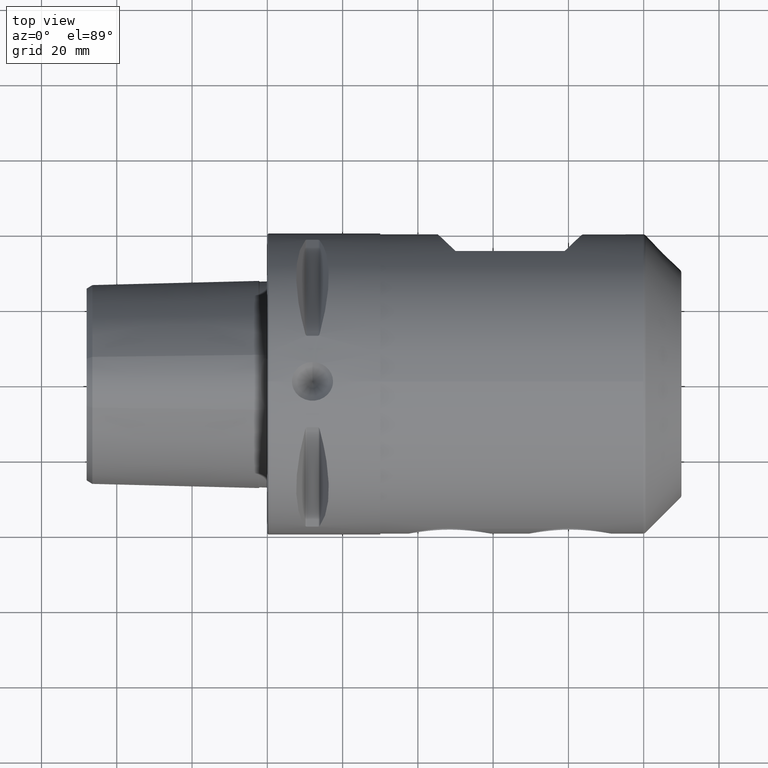
[diagram: clean part render]
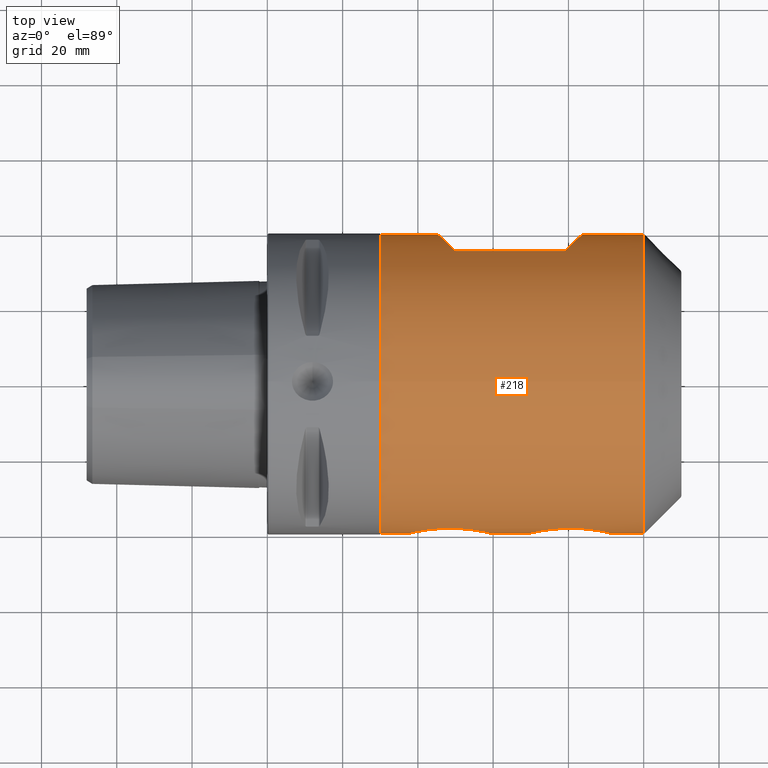
[diagram: same view with one face highlighted and labeled with its STEP entity id]
A machine part, top view. The second image highlights one B-rep face of the part: STEP entity #218.
In plain terms, the highlighted cylindrical surface (bore or boss wall) has radius 39.75 mm, axis along (1, -0, -0).
Its self-contained STEP definition (entity closure, byte-faithful):
#218 = ADVANCED_FACE( '', ( #501, #502, #503, #504, #505 ), #506, .T. );
#501 = FACE_OUTER_BOUND( '', #872, .T. );
#502 = FACE_OUTER_BOUND( '', #873, .T. );
#503 = FACE_BOUND( '', #874, .T. );
#504 = FACE_BOUND( '', #875, .T. );
#505 = FACE_BOUND( '', #876, .T. );
#506 = CYLINDRICAL_SURFACE( '', #877, 39.7500000000000 );
#872 = EDGE_LOOP( '', ( #1422 ) );
#873 = EDGE_LOOP( '', ( #1423 ) );
#874 = EDGE_LOOP( '', ( #1424 ) );
#875 = EDGE_LOOP( '', ( #1425 ) );
#876 = EDGE_LOOP( '', ( #1426, #1427, #1428, #1429 ) );
#877 = AXIS2_PLACEMENT_3D( '', #1430, #1431, #1432 );
#1422 = ORIENTED_EDGE( '', *, *, #2073, .F. );
#1423 = ORIENTED_EDGE( '', *, *, #2074, .T. );
#1424 = ORIENTED_EDGE( '', *, *, #2000, .T. );
#1425 = ORIENTED_EDGE( '', *, *, #1945, .T. );
#1426 = ORIENTED_EDGE( '', *, *, #2075, .F. );
#1427 = ORIENTED_EDGE( '', *, *, #1972, .T. );
#1428 = ORIENTED_EDGE( '', *, *, #2076, .T. );
#1429 = ORIENTED_EDGE( '', *, *, #2057, .T. );
#1430 = CARTESIAN_POINT( '', ( 32.1956524513299, 0.000000000000000, 0.000000000000000 ) );
#1431 = DIRECTION( '', ( 1.00000000000000, -0.000000000000000, -0.000000000000000 ) );
#1432 = DIRECTION( '', ( 0.000000000000000, 0.000000000000000, 1.00000000000000 ) );
#1945 = EDGE_CURVE( '', #2282, #2282, #2283, .T. );
#1972 = EDGE_CURVE( '', #2324, #2325, #2326, .T. );
#2000 = EDGE_CURVE( '', #2371, #2371, #2372, .T. );
#2057 = EDGE_CURVE( '', #2454, #2455, #2457, .T. );
#2073 = EDGE_CURVE( '', #2479, #2479, #2480, .T. );
#2074 = EDGE_CURVE( '', #2481, #2481, #2482, .T. );
#2075 = EDGE_CURVE( '', #2324, #2455, #2483, .F. );
#2076 = EDGE_CURVE( '', #2325, #2454, #2484, .F. );
#2282 = VERTEX_POINT( '', #2773 );
#2283 = B_SPLINE_CURVE_WITH_KNOTS( '', 3, ( #2774, #2775, #2776, #2777, #2778, #2779, #2780, #2781, #2782, #2783, #2784, #2785, #2786, #2787, #2788, #2789, #2790, #2791, #2792, #2793, #2794, #2795, #2796, #2797, #2798, #2799, #2800, #2801, #2802, #2803, #2804, #2805, #2806, #2807, #2808, #2809, #2810, #2811, #2812, #2813, #2814, #2815, #2816, #2817, #2818, #2819, #2820, #2821, #2822, #2823, #2824, #2825, #2826, #2827, #2828, #2829, #2830, #2831, #2832, #2833, #2834, #2835, #2836, #2837, #2838, #2839, #2840, #2841, #2842, #2843, #2844, #2845, #2846, #2847, #2848, #2849, #2850, #2851, #2852, #2853, #2854, #2855, #2856, #2857, #2858, #2859, #2860, #2861, #2862, #2863, #2864, #2865, #2866, #2867, #2868, #2869, #2870, #2871 ), .UNSPECIFIED., .T., .F., ( 2, 2, 2, 2, 2, 2, 2, 2, 2, 2, 2, 2, 2, 2, 2, 2, 2, 2, 2, 2, 2, 2, 2, 2, 2, 2, 2, 2, 2, 2, 2, 2, 2, 2, 2, 2, 2, 2, 2, 2, 2, 2, 2, 2, 2, 2, 2, 2, 2, 2, 2 ), ( -0.00204363217780444, 0.000000000000000, 0.00204363217780456, 0.00408726435560912, 0.00613089653341368, 0.00715271262231597, 0.00817452871121825, 0.00919634480012054, 0.0102181608890228, 0.0122617930668274, 0.0132836091557297, 0.0143054252446320, 0.0153272413335342, 0.0163490574224365, 0.0183926896002411, 0.0194145056891434, 0.0204363217780457, 0.0224799539558502, 0.0245235861336548, 0.0255454022225571, 0.0265672183114594, 0.0286108504892640, 0.0296326665781662, 0.0306544826670685, 0.0326981148448731, 0.0337199309337753, 0.0347417470226776, 0.0367853792004821, 0.0378071952893844, 0.0388290113782866, 0.0408726435560911, 0.0418944596449934, 0.0429162757338956, 0.0439380918227979, 0.0449599079117001, 0.0470035400895046, 0.0480253561784069, 0.0490471722673092, 0.0500689883562114, 0.0510908044451137, 0.0531344366229182, 0.0541562527118205, 0.0551780688007227, 0.0572217009785272, 0.0582435170674295, 0.0592653331563317, 0.0613089653341362, 0.0623307814230384, 0.0633525975119406, 0.0653962296897451, 0.0674398618675496 ), .UNSPECIFIED. );
#2324 = VERTEX_POINT( '', #2954 );
#2325 = VERTEX_POINT( '', #2955 );
#2326 = ELLIPSE( '', #2956, 56.2149891043306, 39.7500000000000 );
#2371 = VERTEX_POINT( '', #3026 );
#2372 = B_SPLINE_CURVE_WITH_KNOTS( '', 3, ( #3027, #3028, #3029, #3030, #3031, #3032, #3033, #3034, #3035, #3036, #3037, #3038, #3039, #3040, #3041, #3042, #3043, #3044, #3045, #3046, #3047, #3048, #3049, #3050, #3051, #3052, #3053, #3054, #3055, #3056, #3057, #3058, #3059, #3060, #3061, #3062, #3063, #3064, #3065, #3066, #3067, #3068, #3069, #3070, #3071, #3072, #3073, #3074, #3075, #3076, #3077, #3078, #3079, #3080, #3081, #3082, #3083, #3084, #3085, #3086, #3087, #3088, #3089, #3090, #3091, #3092, #3093, #3094, #3095, #3096, #3097, #3098, #3099, #3100, #3101, #3102, #3103, #3104, #3105, #3106, #3107, #3108, #3109, #3110, #3111, #3112, #3113, #3114, #3115, #3116 ), .UNSPECIFIED., .T., .F., ( 2, 2, 2, 2, 2, 2, 2, 2, 2, 2, 2, 2, 2, 2, 2, 2, 2, 2, 2, 2, 2, 2, 2, 2, 2, 2, 2, 2, 2, 2, 2, 2, 2, 2, 2, 2, 2, 2, 2, 2, 2, 2, 2, 2, 2, 2, 2 ), ( -0.00203794593131674, 0.000000000000000, 0.00203794593131673, 0.00305691889697510, 0.00407589186263346, 0.00611383779395018, 0.00713281075960854, 0.00815178372526690, 0.0101897296565836, 0.0112087026222420, 0.0122276755879003, 0.0142656215192171, 0.0163035674505338, 0.0183415133818505, 0.0193604863475089, 0.0203794593131672, 0.0224174052444839, 0.0234363782101423, 0.0244553511758006, 0.0264932971071174, 0.0285312430384341, 0.0305691889697509, 0.0326071349010676, 0.0336261078667260, 0.0346450808323844, 0.0366830267637012, 0.0377019997293595, 0.0387209726950179, 0.0407589186263347, 0.0427968645576514, 0.0438158375233098, 0.0448348104889682, 0.0458537834546266, 0.0468727564202850, 0.0489107023516017, 0.0509486482829185, 0.0529865942142352, 0.0540055671798936, 0.0550245401455519, 0.0570624860768687, 0.0580814590425271, 0.0591004320081854, 0.0611383779395021, 0.0621573509051605, 0.0631763238708189, 0.0652142698021356, 0.0672522157334523 ), .UNSPECIFIED. );
#2454 = VERTEX_POINT( '', #3367 );
#2455 = VERTEX_POINT( '', #3368 );
#2457 = ELLIPSE( '', #3371, 56.2149891043305, 39.7500000000000 );
#2479 = VERTEX_POINT( '', #3412 );
#2480 = CIRCLE( '', #3413, 39.7500000000000 );
#2481 = VERTEX_POINT( '', #3414 );
#2482 = CIRCLE( '', #3415, 39.7500000000000 );
#2483 = LINE( '', #3416, #3417 );
#2484 = LINE( '', #3418, #3419 );
#2773 = CARTESIAN_POINT( '', ( 42.1029438375500, -38.9483959552351, -7.94260363572459 ) );
#2774 = CARTESIAN_POINT( '', ( 42.6792382104307, -38.8733841929997, -8.31044118004116 ) );
#2775 = CARTESIAN_POINT( '', ( 41.5266494646693, -39.0234077174705, -7.57476609140800 ) );
#2776 = CARTESIAN_POINT( '', ( 40.9916333128695, -39.1027857343946, -7.15940956917186 ) );
#2777 = CARTESIAN_POINT( '', ( 40.0064081535498, -39.2616661768700, -6.22949167951491 ) );
#2778 = CARTESIAN_POINT( '', ( 39.5539071018823, -39.3417183420423, -5.70978433086193 ) );
#2779 = CARTESIAN_POINT( '', ( 38.7787551747985, -39.4861934438758, -4.60575363240031 ) );
#2780 = CARTESIAN_POINT( '', ( 38.4507404846304, -39.5514328355585, -4.01787837684208 ) );
#2781 = CARTESIAN_POINT( '', ( 38.0564439291239, -39.6320117181883, -3.07657580250864 ) );
#2782 = CARTESIAN_POINT( '', ( 37.9410086906380, -39.6560731432446, -2.75065143991178 ) );
#2783 = CARTESIAN_POINT( '', ( 37.7509617735525, -39.6960865077963, -2.09545614408937 ) );
#2784 = CARTESIAN_POINT( '', ( 37.6754714220255, -39.7122139155222, -1.76470822795544 ) );
#2785 = CARTESIAN_POINT( '', ( 37.5633964175502, -39.7362666973294, -1.09692213065721 ) );
#2786 = CARTESIAN_POINT( '', ( 37.5268097299968, -39.7441929845677, -0.759884294354831 ) );
#2787 = CARTESIAN_POINT( '', ( 37.4936354503767, -39.7513774135907, -0.0793338366674390 ) );
#2788 = CARTESIAN_POINT( '', ( 37.4973153243830, -39.7505767304289, 0.266735756236683 ) );
#2789 = CARTESIAN_POINT( '', ( 37.5699467092856, -39.7348618871312, 1.29276613201259 ) );
#2790 = CARTESIAN_POINT( '', ( 37.6982109201140, -39.7070122936980, 1.96002190287235 ) );
#2791 = CARTESIAN_POINT( '', ( 38.0051822534030, -39.6426957658066, 2.93694998384452 ) );
#2792 = CARTESIAN_POINT( '', ( 38.1275726252083, -39.6173343383277, 3.25994461888205 ) );
#2793 = CARTESIAN_POINT( '', ( 38.4046647283850, -39.5611016266593, 3.88325341410400 ) );
#2794 = CARTESIAN_POINT( '', ( 38.5597060562504, -39.5301560159438, 4.18522450254762 ) );
#2795 = CARTESIAN_POINT( '', ( 38.9011704299571, -39.4637607685148, 4.77084109848739 ) );
#2796 = CARTESIAN_POINT( '', ( 39.0875988311828, -39.4283087489762, 5.05448330118780 ) );
#2797 = CARTESIAN_POINT( '', ( 39.4913273703967, -39.3539856211943, 5.60385117338147 ) );
#2798 = CARTESIAN_POINT( '', ( 39.7087127389638, -39.3151193773712, 5.86929824946745 ) );
#2799 = CARTESIAN_POINT( '', ( 40.3924508407088, -39.1975513697357, 6.62371202646403 ) );
#2800 = CARTESIAN_POINT( '', ( 40.8941613215597, -39.1171190866032, 7.07709780543978 ) );
#2801 = CARTESIAN_POINT( '', ( 41.7120399050333, -39.0000520070320, 7.68774337465881 ) );
#2802 = CARTESIAN_POINT( '', ( 41.9963079054108, -38.9615604745786, 7.87985195581439 ) );
#2803 = CARTESIAN_POINT( '', ( 42.5761041702196, -38.8881846450139, 8.23434007526422 ) );
#2804 = CARTESIAN_POINT( '', ( 42.8728215554773, -38.8531184515084, 8.39769491555420 ) );
#2805 = CARTESIAN_POINT( '', ( 43.7827831095615, -38.7540288938473, 8.84771822005714 ) );
#2806 = CARTESIAN_POINT( '', ( 44.4174471836169, -38.6959810374801, 9.09521721933755 ) );
#2807 = CARTESIAN_POINT( '', ( 45.7328261570280, -38.6031886531948, 9.48133695877312 ) );
#2808 = CARTESIAN_POINT( '', ( 46.3988460569094, -38.5694478906585, 9.61596812478242 ) );
#2809 = CARTESIAN_POINT( '', ( 47.4098416473560, -38.5396055743477, 9.73462714054681 ) );
#2810 = CARTESIAN_POINT( '', ( 47.7488472864025, -38.5331165182508, 9.76020338369747 ) );
#2811 = CARTESIAN_POINT( '', ( 48.4309315742322, -38.5273262592557, 9.78303480588225 ) );
#2812 = CARTESIAN_POINT( '', ( 48.7756700172147, -38.5280565185529, 9.78016758389709 ) );
#2813 = CARTESIAN_POINT( '', ( 49.8018447146097, -38.5411766456207, 9.72838481119758 ) );
#2814 = CARTESIAN_POINT( '', ( 50.4745488266964, -38.5643056969323, 9.63740379466183 ) );
#2815 = CARTESIAN_POINT( '', ( 51.4668915810583, -38.6182972946785, 9.41781798012593 ) );
#2816 = CARTESIAN_POINT( '', ( 51.7948703639180, -38.6395100968094, 9.33068310816277 ) );
#2817 = CARTESIAN_POINT( '', ( 52.4450829920173, -38.6879637187161, 9.12769692122259 ) );
#2818 = CARTESIAN_POINT( '', ( 52.7688470120170, -38.7153640206367, 9.01114336525272 ) );
#2819 = CARTESIAN_POINT( '', ( 53.7147869444948, -38.8043327670373, 8.62303441389612 ) );
#2820 = CARTESIAN_POINT( '', ( 54.3145557491868, -38.8727317477200, 8.31322043519479 ) );
#2821 = CARTESIAN_POINT( '', ( 55.1677160150057, -38.9835507507888, 7.77041651034616 ) );
#2822 = CARTESIAN_POINT( '', ( 55.4443024130477, -39.0218620090693, 7.57637992235034 ) );
#2823 = CARTESIAN_POINT( '', ( 55.9811356542978, -39.1002873437534, 7.16064082457351 ) );
#2824 = CARTESIAN_POINT( '', ( 56.2424465374355, -39.1405893192575, 6.93775388709025 ) );
#2825 = CARTESIAN_POINT( '', ( 56.9838007827585, -39.2599806793403, 6.24011715308793 ) );
#2826 = CARTESIAN_POINT( '', ( 57.4266686751721, -39.3382303275914, 5.73361850469451 ) );
#2827 = CARTESIAN_POINT( '', ( 58.0103379883639, -39.4468223005234, 4.90792950305251 ) );
#2828 = CARTESIAN_POINT( '', ( 58.1913566630388, -39.4815535975861, 4.62162989869001 ) );
#2829 = CARTESIAN_POINT( '', ( 58.5242654583295, -39.5468252328448, 4.02506539106676 ) );
#2830 = CARTESIAN_POINT( '', ( 58.6753203712433, -39.5772072780552, 3.71562885998238 ) );
#2831 = CARTESIAN_POINT( '', ( 59.0703438181849, -39.6578979084017, 2.77643089377686 ) );
#2832 = CARTESIAN_POINT( '', ( 59.2615791252663, -39.6987127958562, 2.12782659424015 ) );
#2833 = CARTESIAN_POINT( '', ( 59.4338501993859, -39.7356716812547, 1.11898702195068 ) );
#2834 = CARTESIAN_POINT( '', ( 59.4720039467593, -39.7439362546676, 0.774103880966537 ) );
#2835 = CARTESIAN_POINT( '', ( 59.5063479904954, -39.7513736462379, 0.0894375245178992 ) );
#2836 = CARTESIAN_POINT( '', ( 59.5030356940844, -39.7506532211368, -0.251316459343103 ) );
#2837 = CARTESIAN_POINT( '', ( 59.4564529150943, -39.7405733110269, -0.929744255537172 ) );
#2838 = CARTESIAN_POINT( '', ( 59.4131807214283, -39.7312133686489, -1.26741793459255 ) );
#2839 = CARTESIAN_POINT( '', ( 59.2863897858129, -39.7040722683030, -1.93966731152638 ) );
#2840 = CARTESIAN_POINT( '', ( 59.2021685578013, -39.6861452081885, -2.27581313016662 ) );
#2841 = CARTESIAN_POINT( '', ( 58.8957137459141, -39.6219210095867, -3.25479078675269 ) );
#2842 = CARTESIAN_POINT( '', ( 58.6196912992038, -39.5650797903990, -3.87569185162288 ) );
#2843 = CARTESIAN_POINT( '', ( 58.1041979007770, -39.4647845421482, -4.76254003438970 ) );
#2844 = CARTESIAN_POINT( '', ( 57.9154847682906, -39.4288908147034, -5.04990688560543 ) );
#2845 = CARTESIAN_POINT( '', ( 57.5132020731937, -39.3548053245063, -5.59806111982487 ) );
#2846 = CARTESIAN_POINT( '', ( 57.2987220508362, -39.3164331432859, -5.86048532997861 ) );
#2847 = CARTESIAN_POINT( '', ( 56.8442132216241, -39.2382113678227, -6.36317311311224 ) );
#2848 = CARTESIAN_POINT( '', ( 56.6041806464056, -39.1983594944506, -6.60343311041699 ) );
#2849 = CARTESIAN_POINT( '', ( 56.0988305330361, -39.1183105576203, -7.06218769344952 ) );
#2850 = CARTESIAN_POINT( '', ( 55.8341560584989, -39.0782398346698, -7.27986786004746 ) );
#2851 = CARTESIAN_POINT( '', ( 55.0179996803751, -38.9613951821472, -7.88944890366060 ) );
#2852 = CARTESIAN_POINT( '', ( 54.4400921547207, -38.8872624343201, -8.24252261960605 ) );
#2853 = CARTESIAN_POINT( '', ( 53.5242505227422, -38.7874288215872, -8.69608130728456 ) );
#2854 = CARTESIAN_POINT( '', ( 53.2093366917975, -38.7559303934401, -8.83496214267765 ) );
#2855 = CARTESIAN_POINT( '', ( 52.5730541263685, -38.6985631799615, -9.08294580685410 ) );
#2856 = CARTESIAN_POINT( '', ( 52.2510612595574, -38.6725993073959, -9.19250979232758 ) );
#2857 = CARTESIAN_POINT( '', ( 51.2738590329967, -38.6036540945348, -9.47940316893686 ) );
#2858 = CARTESIAN_POINT( '', ( 50.6075158696047, -38.5696197863912, -9.61528579454464 ) );
#2859 = CARTESIAN_POINT( '', ( 49.5852816014846, -38.5394695904274, -9.73516725757247 ) );
#2860 = CARTESIAN_POINT( '', ( 49.2413871853158, -38.5329640075292, -9.76080514029910 ) );
#2861 = CARTESIAN_POINT( '', ( 48.5588303496198, -38.5273110284465, -9.78309445470984 ) );
#2862 = CARTESIAN_POINT( '', ( 48.2185906828007, -38.5281096443184, -9.77995817972401 ) );
#2863 = CARTESIAN_POINT( '', ( 47.2009395789472, -38.5411818155667, -9.72836385557801 ) );
#2864 = CARTESIAN_POINT( '', ( 46.5265706979432, -38.5641428395305, -9.63809344854919 ) );
#2865 = CARTESIAN_POINT( '', ( 45.5213643374220, -38.6189880977061, -9.41499457657333 ) );
#2866 = CARTESIAN_POINT( '', ( 45.1896821934521, -38.6405645671980, -9.32631900264087 ) );
#2867 = CARTESIAN_POINT( '', ( 44.5404164373206, -38.6891455282640, -9.12269009139441 ) );
#2868 = CARTESIAN_POINT( '', ( 44.2216659563317, -38.7162122481805, -9.00748687022881 ) );
#2869 = CARTESIAN_POINT( '', ( 43.2829865969981, -38.8046318001118, -8.62164097557934 ) );
#2870 = CARTESIAN_POINT( '', ( 42.6792382104307, -38.8733841929997, -8.31044118004116 ) );
#2871 = CARTESIAN_POINT( '', ( 41.5266494646693, -39.0234077174705, -7.57476609140800 ) );
#2954 = CARTESIAN_POINT( '', ( 50.0000000000000, 35.0000000000000, 18.8431021862113 ) );
#2955 = CARTESIAN_POINT( '', ( 50.0000000000000, 35.0000000000000, -18.8431021862113 ) );
#2956 = AXIS2_PLACEMENT_3D( '', #4210, #4211, #4212 );
#3026 = CARTESIAN_POINT( '', ( 71.5863554463989, -39.3373147550245, -5.71298281810900 ) );
#3027 = CARTESIAN_POINT( '', ( 72.0180865799392, -39.2602326031594, -6.24373968653552 ) );
#3028 = CARTESIAN_POINT( '', ( 71.1546243128586, -39.4143969068897, -5.18222594968248 ) );
#3029 = CARTESIAN_POINT( '', ( 70.7838477803772, -39.4857326045101, -4.61599179990048 ) );
#3030 = CARTESIAN_POINT( '', ( 70.3225428816365, -39.5775803577234, -3.71074425565179 ) );
#3031 = CARTESIAN_POINT( '', ( 70.1847037299157, -39.6056683083536, -3.39961068212103 ) );
#3032 = CARTESIAN_POINT( '', ( 69.9431601657460, -39.6555733392144, -2.75713947407566 ) );
#3033 = CARTESIAN_POINT( '', ( 69.8412983374096, -39.6770061188160, -2.43030946328241 ) );
#3034 = CARTESIAN_POINT( '', ( 69.5947987790648, -39.7292904479052, -1.44251692035560 ) );
#3035 = CARTESIAN_POINT( '', ( 69.5070965113506, -39.7484618902073, -0.770417934597116 ) );
#3036 = CARTESIAN_POINT( '', ( 69.4970649694512, -39.7506361413432, 0.259312487823903 ) );
#3037 = CARTESIAN_POINT( '', ( 69.5144693766519, -39.7468532595612, 0.604117361445584 ) );
#3038 = CARTESIAN_POINT( '', ( 69.5889436518324, -39.7307798460803, 1.28157506443858 ) );
#3039 = CARTESIAN_POINT( '', ( 69.6459557700207, -39.7185023603653, 1.61648057621130 ) );
#3040 = CARTESIAN_POINT( '', ( 69.8750238384136, -39.6697638748379, 2.60999826226820 ) );
#3041 = CARTESIAN_POINT( '', ( 70.1087821251223, -39.6205629317261, 3.26333775774601 ) );
#3042 = CARTESIAN_POINT( '', ( 70.5560288867477, -39.5309473151010, 4.17859718777839 ) );
#3043 = CARTESIAN_POINT( '', ( 70.7213671092463, -39.4984206675032, 4.47446519763109 ) );
#3044 = CARTESIAN_POINT( '', ( 71.0834581270951, -39.4291626452043, 5.04848562738230 ) );
#3045 = CARTESIAN_POINT( '', ( 71.2809618035348, -39.3922949512940, 5.32756741764127 ) );
#3046 = CARTESIAN_POINT( '', ( 71.9154467452959, -39.2778965880639, 6.13211579264061 ) );
#3047 = CARTESIAN_POINT( '', ( 72.3869169490176, -39.1978706376007, 6.61728418840497 ) );
#3048 = CARTESIAN_POINT( '', ( 73.4186066573635, -39.0394869038778, 7.49533020180895 ) );
#3049 = CARTESIAN_POINT( '', ( 73.9830800605373, -38.9607260145214, 7.88938546549622 ) );
#3050 = CARTESIAN_POINT( '', ( 75.1591078431636, -38.8185137700762, 8.56175001294627 ) );
#3051 = CARTESIAN_POINT( '', ( 75.7745360377669, -38.7543375197104, 8.84418591284744 ) );
#3052 = CARTESIAN_POINT( '', ( 76.7383717650114, -38.6734498581046, 9.18916352753752 ) );
#3053 = CARTESIAN_POINT( '', ( 77.0671022484877, -38.6490427848747, 9.29096227187059 ) );
#3054 = CARTESIAN_POINT( '', ( 77.7262530283971, -38.6068714870931, 9.46466914918180 ) );
#3055 = CARTESIAN_POINT( '', ( 78.0581036767638, -38.5889724528248, 9.53715563533608 ) );
#3056 = CARTESIAN_POINT( '', ( 79.0603332759477, -38.5453243175580, 9.71262083910650 ) );
#3057 = CARTESIAN_POINT( '', ( 79.7373371483784, -38.5296285238676, 9.77395750698924 ) );
#3058 = CARTESIAN_POINT( '', ( 80.7665041218772, -38.5279976178288, 9.78038365528140 ) );
#3059 = CARTESIAN_POINT( '', ( 81.1100307322870, -38.5311395156251, 9.76803609085502 ) );
#3060 = CARTESIAN_POINT( '', ( 81.7892183672497, -38.5444859182070, 9.71523786358103 ) );
#3061 = CARTESIAN_POINT( '', ( 82.1262099083574, -38.5546850548650, 9.67480723969176 ) );
#3062 = CARTESIAN_POINT( '', ( 83.1294720306872, -38.5953374596194, 9.51183292526607 ) );
#3063 = CARTESIAN_POINT( '', ( 83.7880979468991, -38.6358591114184, 9.34799829841620 ) );
#3064 = CARTESIAN_POINT( '', ( 85.0838895169671, -38.7407446494412, 8.90333563735283 ) );
#3065 = CARTESIAN_POINT( '', ( 85.7049140611115, -38.8038198210220, 8.62771978022221 ) );
#3066 = CARTESIAN_POINT( '', ( 86.8841147250147, -38.9432749306347, 7.97466732756766 ) );
#3067 = CARTESIAN_POINT( '', ( 87.4440669201896, -39.0198350903374, 7.59675271873453 ) );
#3068 = CARTESIAN_POINT( '', ( 88.4990093149782, -39.1792322788762, 6.72651026793180 ) );
#3069 = CARTESIAN_POINT( '', ( 88.9758968755549, -39.2592588139532, 6.24900573295444 ) );
#3070 = CARTESIAN_POINT( '', ( 89.6138961718158, -39.3730199448804, 5.46781896535632 ) );
#3071 = CARTESIAN_POINT( '', ( 89.8136063249022, -39.4098995603807, 5.19649988999518 ) );
#3072 = CARTESIAN_POINT( '', ( 90.1856553168584, -39.4803883473093, 4.63062959128222 ) );
#3073 = CARTESIAN_POINT( '', ( 90.3589840384540, -39.5141969018558, 4.33408738887041 ) );
#3074 = CARTESIAN_POINT( '', ( 90.8266171884357, -39.6072291369267, 3.42113742298824 ) );
#3075 = CARTESIAN_POINT( '', ( 91.0666520279982, -39.6575055311788, 2.78880639099251 ) );
#3076 = CARTESIAN_POINT( '', ( 91.3163133965914, -39.7104256150368, 1.80354345196005 ) );
#3077 = CARTESIAN_POINT( '', ( 91.3809970628090, -39.7243147245266, 1.46895041409012 ) );
#3078 = CARTESIAN_POINT( '', ( 91.4708997029220, -39.7436820431897, 0.786596022193783 ) );
#3079 = CARTESIAN_POINT( '', ( 91.4953518411549, -39.7489925643113, 0.442955011404151 ) );
#3080 = CARTESIAN_POINT( '', ( 91.5074780512209, -39.7516207741967, -0.579328838987556 ) );
#3081 = CARTESIAN_POINT( '', ( 91.4354888694270, -39.7358439238571, -1.25601823230913 ) );
#3082 = CARTESIAN_POINT( '', ( 91.1289872330979, -39.6706049724896, -2.59961059732249 ) );
#3083 = CARTESIAN_POINT( '', ( 90.8999047857217, -39.6223562488694, -3.24184301330101 ) );
#3084 = CARTESIAN_POINT( '', ( 90.4539635447668, -39.5329244140011, -4.15991916816592 ) );
#3085 = CARTESIAN_POINT( '', ( 90.2872229945523, -39.5000893445806, -4.45988837507427 ) );
#3086 = CARTESIAN_POINT( '', ( 89.9228793624532, -39.4303502338380, -5.03935938238639 ) );
#3087 = CARTESIAN_POINT( '', ( 89.7266225371493, -39.3937008690878, -5.31707455497938 ) );
#3088 = CARTESIAN_POINT( '', ( 89.3076422722495, -39.3180830623108, -5.85006788777751 ) );
#3089 = CARTESIAN_POINT( '', ( 89.0849121281293, -39.2791120010267, -6.10534006710264 ) );
#3090 = CARTESIAN_POINT( '', ( 88.6137158797430, -39.2000000830700, -6.59422553538139 ) );
#3091 = CARTESIAN_POINT( '', ( 88.3641153242684, -39.1596857923158, -6.82877215159789 ) );
#3092 = CARTESIAN_POINT( '', ( 87.5850100730952, -39.0399708796994, -7.49304047216914 ) );
#3093 = CARTESIAN_POINT( '', ( 87.0298987338950, -38.9624430414423, -7.88095676445141 ) );
#3094 = CARTESIAN_POINT( '', ( 85.8529773655505, -38.8198307401945, -8.55582775559685 ) );
#3095 = CARTESIAN_POINT( '', ( 85.2255958476496, -38.7543798381189, -8.84398243797376 ) );
#3096 = CARTESIAN_POINT( '', ( 83.9450256351723, -38.6468485914673, -9.30263811768392 ) );
#3097 = CARTESIAN_POINT( '', ( 83.2888372549320, -38.6042082230127, -9.47588701904771 ) );
#3098 = CARTESIAN_POINT( '', ( 82.2808991704648, -38.5601235432424, -9.65313830631036 ) );
#3099 = CARTESIAN_POINT( '', ( 81.9394875701802, -38.5487113376170, -9.69847205844047 ) );
#3100 = CARTESIAN_POINT( '', ( 81.2558053716885, -38.5331845030213, -9.75997941162749 ) );
#3101 = CARTESIAN_POINT( '', ( 80.9147912293462, -38.5290634211752, -9.77618414547366 ) );
#3102 = CARTESIAN_POINT( '', ( 79.8941613911055, -38.5274876710193, -9.78239295857889 ) );
#3103 = CARTESIAN_POINT( '', ( 79.2169396601923, -38.5408306124119, -9.73034223887582 ) );
#3104 = CARTESIAN_POINT( '', ( 78.2059778954651, -38.5817201263522, -9.56642792200403 ) );
#3105 = CARTESIAN_POINT( '', ( 77.8681590235826, -38.5989398029873, -9.49693017334755 ) );
#3106 = CARTESIAN_POINT( '', ( 77.2044099163324, -38.6395095379231, -9.33049512624199 ) );
#3107 = CARTESIAN_POINT( '', ( 76.8783030478065, -38.6628220819413, -9.23371533116113 ) );
#3108 = CARTESIAN_POINT( '', ( 75.9169654691201, -38.7407558073767, -8.90323424943375 ) );
#3109 = CARTESIAN_POINT( '', ( 75.2985579247478, -38.8033870981877, -8.62978927092773 ) );
#3110 = CARTESIAN_POINT( '', ( 74.4061341199465, -38.9089605145396, -8.13533619256756 ) );
#3111 = CARTESIAN_POINT( '', ( 74.1132550007926, -38.9462781324710, -7.95537882673098 ) );
#3112 = CARTESIAN_POINT( '', ( 73.5502168400898, -39.0225596399660, -7.57234915953306 ) );
#3113 = CARTESIAN_POINT( '', ( 73.2792173185794, -39.0615978924307, -7.36898898324393 ) );
#3114 = CARTESIAN_POINT( '', ( 72.4979139026978, -39.1797953609777, -6.72293460122869 ) );
#3115 = CARTESIAN_POINT( '', ( 72.0180865799392, -39.2602326031594, -6.24373968653552 ) );
#3116 = CARTESIAN_POINT( '', ( 71.1546243128586, -39.4143969068897, -5.18222594968248 ) );
#3367 = CARTESIAN_POINT( '', ( 79.0000000000000, 35.0000000000000, -18.8431021862113 ) );
#3368 = CARTESIAN_POINT( '', ( 79.0000000000000, 35.0000000000000, 18.8431021862113 ) );
#3371 = AXIS2_PLACEMENT_3D( '', #4314, #4315, #4316 );
#3412 = CARTESIAN_POINT( '', ( 30.0000000000000, 0.000000000000000, 39.7500000000000 ) );
#3413 = AXIS2_PLACEMENT_3D( '', #4328, #4329, #4330 );
#3414 = CARTESIAN_POINT( '', ( 99.8357864376269, -39.7500000000000, 2.43398551330537E-015 ) );
#3415 = AXIS2_PLACEMENT_3D( '', #4331, #4332, #4333 );
#3416 = CARTESIAN_POINT( '', ( 35.0000000000000, 35.0000000000000, 18.8431021862113 ) );
#3417 = VECTOR( '', #4334, 1000.00000000000 );
#3418 = CARTESIAN_POINT( '', ( 35.0000000000000, 35.0000000000000, -18.8431021862113 ) );
#3419 = VECTOR( '', #4335, 1000.00000000000 );
#4210 = CARTESIAN_POINT( '', ( 85.0000000000000, 0.000000000000000, 0.000000000000000 ) );
#4211 = DIRECTION( '', ( -0.707106781186547, -0.707106781186548, 4.32978028117747E-017 ) );
#4212 = DIRECTION( '', ( -0.707106781186548, 0.707106781186547, -4.32978028117746E-017 ) );
#4314 = CARTESIAN_POINT( '', ( 44.0000000000000, 0.000000000000000, 0.000000000000000 ) );
#4315 = DIRECTION( '', ( 0.707106781186547, -0.707106781186548, 4.32978028117747E-017 ) );
#4316 = DIRECTION( '', ( -0.707106781186548, -0.707106781186547, 4.32978028117746E-017 ) );
#4328 = CARTESIAN_POINT( '', ( 30.0000000000000, 0.000000000000000, 0.000000000000000 ) );
#4329 = DIRECTION( '', ( -1.00000000000000, 0.000000000000000, 0.000000000000000 ) );
#4330 = DIRECTION( '', ( 0.000000000000000, 0.000000000000000, 1.00000000000000 ) );
#4331 = CARTESIAN_POINT( '', ( 99.8357864376269, 0.000000000000000, 0.000000000000000 ) );
#4332 = DIRECTION( '', ( -1.00000000000000, 0.000000000000000, 0.000000000000000 ) );
#4333 = DIRECTION( '', ( 0.000000000000000, -1.00000000000000, 6.12323399573677E-017 ) );
#4334 = DIRECTION( '', ( -1.00000000000000, 0.000000000000000, 0.000000000000000 ) );
#4335 = DIRECTION( '', ( -1.00000000000000, 0.000000000000000, 0.000000000000000 ) );